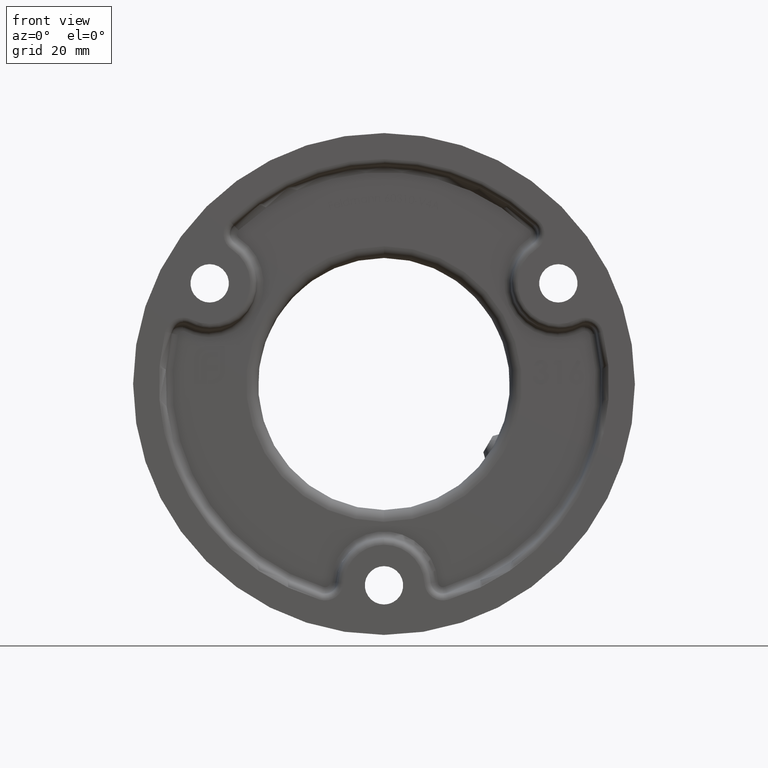
[diagram: clean part render]
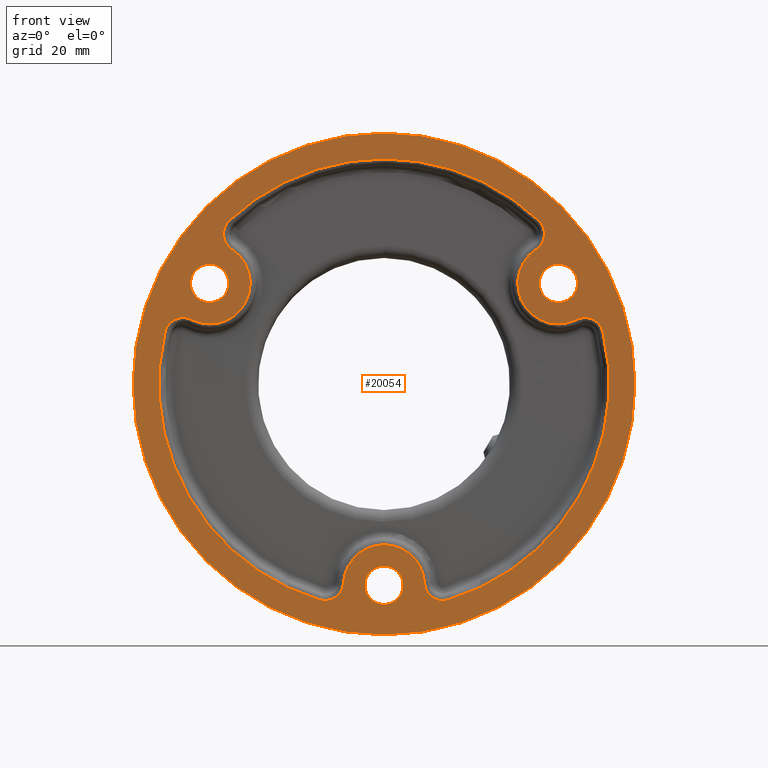
[diagram: same view with one face highlighted and labeled with its STEP entity id]
A machine part, front view. The second image highlights one B-rep face of the part: STEP entity #20054.
In plain terms, the highlighted planar face has unit normal (0, 1, 0).
Its self-contained STEP definition (entity closure, byte-faithful):
#117 = FACE_BOUND ( 'NONE', #10709, .T. ) ;
#248 = CARTESIAN_POINT ( 'NONE',  ( 29.53146626904951333, 0.000000000000000000, 20.29999999999972715 ) ) ;
#334 = DIRECTION ( 'NONE',  ( 0.000000000000000000, 1.000000000000000000, 0.000000000000000000 ) ) ;
#360 = AXIS2_PLACEMENT_3D ( 'NONE', #3693, #6862, #8098 ) ;
#655 = AXIS2_PLACEMENT_3D ( 'NONE', #3336, #4813, #4946 ) ;
#786 = VERTEX_POINT ( 'NONE', #13235 ) ;
#790 = CIRCLE ( 'NONE', #15092, 3.125000000000000888 ) ;
#1036 = EDGE_CURVE ( 'NONE', #5621, #17752, #7336, .T. ) ;
#1049 = AXIS2_PLACEMENT_3D ( 'NONE', #16757, #5937, #19932 ) ;
#1328 = EDGE_CURVE ( 'NONE', #7589, #5621, #790, .T. ) ;
#1543 = AXIS2_PLACEMENT_3D ( 'NONE', #19428, #13123, #9647 ) ;
#1730 = EDGE_CURVE ( 'NONE', #786, #16157, #17221, .T. ) ;
#1852 = EDGE_CURVE ( 'NONE', #16157, #2573, #15255, .T. ) ;
#1880 = ORIENTED_EDGE ( 'NONE', *, *, #13698, .T. ) ;
#1892 = DIRECTION ( 'NONE',  ( 0.000000000000000000, 0.000000000000000000, 1.000000000000000000 ) ) ;
#1913 = CIRCLE ( 'NONE', #10814, 3.125000000000000888 ) ;
#1940 = DIRECTION ( 'NONE',  ( 0.000000000000000000, 1.000000000000000000, 0.000000000000000000 ) ) ;
#1995 = DIRECTION ( 'NONE',  ( 0.000000000000000000, 0.000000000000000000, 1.000000000000000000 ) ) ;
#2003 = DIRECTION ( 'NONE',  ( 0.000000000000000000, 0.000000000000000000, 1.000000000000000000 ) ) ;
#2027 = ORIENTED_EDGE ( 'NONE', *, *, #5619, .T. ) ;
#2063 = EDGE_CURVE ( 'NONE', #9075, #11012, #18709, .T. ) ;
#2226 = AXIS2_PLACEMENT_3D ( 'NONE', #16606, #19847, #15190 ) ;
#2434 = CARTESIAN_POINT ( 'NONE',  ( 0.000000000000000000, 0.000000000000000000, 38.12500000000002132 ) ) ;
#2450 = ORIENTED_EDGE ( 'NONE', *, *, #3965, .T. ) ;
#2479 = EDGE_CURVE ( 'NONE', #9700, #18978, #2859, .T. ) ;
#2543 = CARTESIAN_POINT ( 'NONE',  ( 0.000000000000000000, 0.000000000000000000, 0.000000000000000000 ) ) ;
#2573 = VERTEX_POINT ( 'NONE', #9458 ) ;
#2595 = DIRECTION ( 'NONE',  ( -0.000000000000000000, -1.000000000000000000, -0.000000000000000000 ) ) ;
#2673 = VERTEX_POINT ( 'NONE', #248 ) ;
#2674 = DIRECTION ( 'NONE',  ( 0.000000000000000000, 1.000000000000000000, 0.000000000000000000 ) ) ;
#2859 = CIRCLE ( 'NONE', #1049, 3.125000000000000888 ) ;
#2888 = ORIENTED_EDGE ( 'NONE', *, *, #9302, .F. ) ;
#3005 = ORIENTED_EDGE ( 'NONE', *, *, #5315, .T. ) ;
#3033 = FACE_OUTER_BOUND ( 'NONE', #15891, .T. ) ;
#3204 = CARTESIAN_POINT ( 'NONE',  ( 32.63359460269541756, 0.000000000000000000, 10.91465772742916940 ) ) ;
#3313 = AXIS2_PLACEMENT_3D ( 'NONE', #8584, #7164, #13364 ) ;
#3336 = CARTESIAN_POINT ( 'NONE',  ( -29.53146626904928240, 0.000000000000000000, 17.05000000000013927 ) ) ;
#3564 = CARTESIAN_POINT ( 'NONE',  ( -24.05903266594282996, 0.000000000000000000, 25.41973538766871599 ) ) ;
#3573 = CARTESIAN_POINT ( 'NONE',  ( -32.63359460269526835, 0.000000000000000000, 10.91465772742960816 ) ) ;
#3590 = DIRECTION ( 'NONE',  ( 0.000000000000000000, 1.000000000000000000, 0.000000000000000000 ) ) ;
#3693 = CARTESIAN_POINT ( 'NONE',  ( 24.05903266594319589, 0.000000000000000000, 25.41973538766836782 ) ) ;
#3720 = ORIENTED_EDGE ( 'NONE', *, *, #13725, .T. ) ;
#3953 = CARTESIAN_POINT ( 'NONE',  ( 0.000000000000000000, 0.000000000000000000, -27.22500000000000497 ) ) ;
#3965 = EDGE_CURVE ( 'NONE', #9172, #9700, #5722, .T. ) ;
#4068 = AXIS2_PLACEMENT_3D ( 'NONE', #13545, #4181, #7423 ) ;
#4181 = DIRECTION ( 'NONE',  ( -0.000000000000000000, -1.000000000000000000, -0.000000000000000000 ) ) ;
#4224 = VERTEX_POINT ( 'NONE', #2434 ) ;
#4259 = CARTESIAN_POINT ( 'NONE',  ( 0.000000000000000000, 0.000000000000000000, 0.000000000000000000 ) ) ;
#4550 = VERTEX_POINT ( 'NONE', #12806 ) ;
#4592 = EDGE_CURVE ( 'NONE', #12783, #9172, #15479, .T. ) ;
#4612 = ORIENTED_EDGE ( 'NONE', *, *, #16927, .T. ) ;
#4765 = CARTESIAN_POINT ( 'NONE',  ( 10.87610422292669554, 0.000000000000000000, -36.54074413489738760 ) ) ;
#4813 = DIRECTION ( 'NONE',  ( 0.000000000000000000, 1.000000000000000000, 0.000000000000000000 ) ) ;
#4829 = EDGE_LOOP ( 'NONE', ( #16647, #6370, #4612, #4871, #7392, #15725, #12269, #11859, #6500, #9500, #3005, #9377, #17477, #13491, #2450, #12698 ) ) ;
#4871 = ORIENTED_EDGE ( 'NONE', *, *, #18168, .T. ) ;
#4926 = CARTESIAN_POINT ( 'NONE',  ( 0.000000000000000000, 0.000000000000000000, -34.10000000000000142 ) ) ;
#4946 = DIRECTION ( 'NONE',  ( 0.000000000000000000, 0.000000000000000000, 1.000000000000000000 ) ) ;
#5156 = ORIENTED_EDGE ( 'NONE', *, *, #19455, .T. ) ;
#5315 = EDGE_CURVE ( 'NONE', #9318, #4224, #19884, .T. ) ;
#5374 = CARTESIAN_POINT ( 'NONE',  ( -9.984620270227788197, 0.000000000000000000, -33.54560117302055033 ) ) ;
#5455 = AXIS2_PLACEMENT_3D ( 'NONE', #7079, #19785, #7145 ) ;
#5551 = CARTESIAN_POINT ( 'NONE',  ( 26.20716058254527070, 0.000000000000000000, 27.68935461871018688 ) ) ;
#5571 = CARTESIAN_POINT ( 'NONE',  ( 0.000000000000000000, 0.000000000000000000, -34.10000000000000142 ) ) ;
#5619 = EDGE_CURVE ( 'NONE', #9909, #4550, #16162, .T. ) ;
#5621 = VERTEX_POINT ( 'NONE', #3573 ) ;
#5716 = CARTESIAN_POINT ( 'NONE',  ( 9.984620270227788197, 0.000000000000000000, -33.54560117302055033 ) ) ;
#5722 = CIRCLE ( 'NONE', #14454, 3.125000000000000888 ) ;
#5750 = EDGE_CURVE ( 'NONE', #5894, #10043, #10325, .T. ) ;
#5809 = DIRECTION ( 'NONE',  ( 0.000000000000000000, 0.000000000000000000, 1.000000000000000000 ) ) ;
#5850 = DIRECTION ( 'NONE',  ( 0.000000000000000000, 0.000000000000000000, 1.000000000000000000 ) ) ;
#5894 = VERTEX_POINT ( 'NONE', #4765 ) ;
#5937 = DIRECTION ( 'NONE',  ( 0.000000000000000000, 1.000000000000000000, 0.000000000000000000 ) ) ;
#6164 = FACE_BOUND ( 'NONE', #4829, .T. ) ;
#6232 = CARTESIAN_POINT ( 'NONE',  ( -29.53146626904928240, 0.000000000000000000, 13.80000000000013571 ) ) ;
#6256 = CIRCLE ( 'NONE', #18391, 3.250000000000002665 ) ;
#6339 = DIRECTION ( 'NONE',  ( 0.000000000000000000, 0.000000000000000000, 1.000000000000000000 ) ) ;
#6370 = ORIENTED_EDGE ( 'NONE', *, *, #5750, .T. ) ;
#6467 = DIRECTION ( 'NONE',  ( 0.000000000000000000, 1.000000000000000000, 0.000000000000000000 ) ) ;
#6500 = ORIENTED_EDGE ( 'NONE', *, *, #1036, .T. ) ;
#6693 = DIRECTION ( 'NONE',  ( 0.000000000000000000, 0.000000000000000000, 1.000000000000000000 ) ) ;
#6698 = VERTEX_POINT ( 'NONE', #16223 ) ;
#6862 = DIRECTION ( 'NONE',  ( 0.000000000000000000, 1.000000000000000000, 0.000000000000000000 ) ) ;
#6999 = CARTESIAN_POINT ( 'NONE',  ( 6.864426435781600055, 0.000000000000000000, -33.71885080645161992 ) ) ;
#7016 = AXIS2_PLACEMENT_3D ( 'NONE', #12690, #15905, #17480 ) ;
#7046 = CARTESIAN_POINT ( 'NONE',  ( 29.53146626904951333, 0.000000000000000000, 13.79999999999972182 ) ) ;
#7079 = CARTESIAN_POINT ( 'NONE',  ( 29.53146626904951333, 0.000000000000000000, 17.04999999999972360 ) ) ;
#7145 = DIRECTION ( 'NONE',  ( 0.000000000000000000, 0.000000000000000000, 1.000000000000000000 ) ) ;
#7164 = DIRECTION ( 'NONE',  ( 0.000000000000000000, 1.000000000000000000, 0.000000000000000000 ) ) ;
#7336 = CIRCLE ( 'NONE', #10525, 6.875000000000013323 ) ;
#7392 = ORIENTED_EDGE ( 'NONE', *, *, #1730, .T. ) ;
#7423 = DIRECTION ( 'NONE',  ( 0.000000000000000000, 0.000000000000000000, 1.000000000000000000 ) ) ;
#7589 = VERTEX_POINT ( 'NONE', #14686 ) ;
#7672 = CARTESIAN_POINT ( 'NONE',  ( -29.53146626904928240, 0.000000000000000000, 20.30000000000013927 ) ) ;
#8098 = DIRECTION ( 'NONE',  ( 0.000000000000000000, 0.000000000000000000, 1.000000000000000000 ) ) ;
#8112 = VERTEX_POINT ( 'NONE', #5551 ) ;
#8182 = CARTESIAN_POINT ( 'NONE',  ( 29.53146626904951333, 0.000000000000000000, 17.04999999999972360 ) ) ;
#8282 = DIRECTION ( 'NONE',  ( 0.000000000000000000, 1.000000000000000000, 0.000000000000000000 ) ) ;
#8578 = CIRCLE ( 'NONE', #12389, 3.250000000000002665 ) ;
#8584 = CARTESIAN_POINT ( 'NONE',  ( 0.000000000000000000, 0.000000000000000000, 0.000000000000000000 ) ) ;
#8712 = AXIS2_PLACEMENT_3D ( 'NONE', #5716, #2674, #9022 ) ;
#8874 = EDGE_CURVE ( 'NONE', #17752, #9318, #9520, .T. ) ;
#9022 = DIRECTION ( 'NONE',  ( 0.000000000000000000, 0.000000000000000000, 1.000000000000000000 ) ) ;
#9075 = VERTEX_POINT ( 'NONE', #7672 ) ;
#9172 = VERTEX_POINT ( 'NONE', #3204 ) ;
#9223 = AXIS2_PLACEMENT_3D ( 'NONE', #2543, #10478, #5850 ) ;
#9302 = EDGE_CURVE ( 'NONE', #6698, #11698, #14393, .T. ) ;
#9318 = VERTEX_POINT ( 'NONE', #10162 ) ;
#9377 = ORIENTED_EDGE ( 'NONE', *, *, #13993, .T. ) ;
#9420 = CIRCLE ( 'NONE', #9223, 42.50000000000000711 ) ;
#9458 = CARTESIAN_POINT ( 'NONE',  ( -37.08326480547167137, 0.000000000000000000, 8.851389516187126105 ) ) ;
#9500 = ORIENTED_EDGE ( 'NONE', *, *, #8874, .T. ) ;
#9520 = CIRCLE ( 'NONE', #13157, 3.125000000000002665 ) ;
#9547 = CARTESIAN_POINT ( 'NONE',  ( 29.53146626904951333, 0.000000000000000000, 17.04999999999972360 ) ) ;
#9647 = DIRECTION ( 'NONE',  ( 0.000000000000000000, 0.000000000000000000, 1.000000000000000000 ) ) ;
#9700 = VERTEX_POINT ( 'NONE', #17326 ) ;
#9909 = VERTEX_POINT ( 'NONE', #14174 ) ;
#9923 = DIRECTION ( 'NONE',  ( 0.000000000000000000, 1.000000000000000000, 0.000000000000000000 ) ) ;
#9964 = CARTESIAN_POINT ( 'NONE',  ( 25.76916816691392143, 0.000000000000000000, 22.80419307902191406 ) ) ;
#10043 = VERTEX_POINT ( 'NONE', #6999 ) ;
#10162 = CARTESIAN_POINT ( 'NONE',  ( -26.20716058254486924, 0.000000000000000000, 27.68935461871055992 ) ) ;
#10311 = DIRECTION ( 'NONE',  ( 0.000000000000000000, 1.000000000000000000, 0.000000000000000000 ) ) ;
#10325 = CIRCLE ( 'NONE', #8712, 3.125000000000002665 ) ;
#10478 = DIRECTION ( 'NONE',  ( 0.000000000000000000, 1.000000000000000000, 0.000000000000000000 ) ) ;
#10525 = AXIS2_PLACEMENT_3D ( 'NONE', #12807, #10971, #12740 ) ;
#10709 = EDGE_LOOP ( 'NONE', ( #14770, #15817 ) ) ;
#10814 = AXIS2_PLACEMENT_3D ( 'NONE', #11154, #9923, #6339 ) ;
#10971 = DIRECTION ( 'NONE',  ( -0.000000000000000000, -1.000000000000000000, -0.000000000000000000 ) ) ;
#11012 = VERTEX_POINT ( 'NONE', #6232 ) ;
#11118 = AXIS2_PLACEMENT_3D ( 'NONE', #19403, #10311, #16434 ) ;
#11154 = CARTESIAN_POINT ( 'NONE',  ( -34.04365293617071586, 0.000000000000000000, 8.125865785352100801 ) ) ;
#11310 = CARTESIAN_POINT ( 'NONE',  ( 37.08326480547179926, 0.000000000000000000, 8.851389516186612738 ) ) ;
#11317 = EDGE_LOOP ( 'NONE', ( #1880, #3720 ) ) ;
#11360 = CARTESIAN_POINT ( 'NONE',  ( 0.000000000000000000, 0.000000000000000000, -34.10000000000000142 ) ) ;
#11575 = EDGE_CURVE ( 'NONE', #8112, #12783, #12862, .T. ) ;
#11672 = PLANE ( 'NONE',  #11118 ) ;
#11698 = VERTEX_POINT ( 'NONE', #11898 ) ;
#11703 = AXIS2_PLACEMENT_3D ( 'NONE', #13457, #15103, #19759 ) ;
#11707 = AXIS2_PLACEMENT_3D ( 'NONE', #8182, #334, #1892 ) ;
#11832 = DIRECTION ( 'NONE',  ( 0.000000000000000000, 0.000000000000000000, 1.000000000000000000 ) ) ;
#11853 = CIRCLE ( 'NONE', #11707, 3.250000000000002665 ) ;
#11859 = ORIENTED_EDGE ( 'NONE', *, *, #1328, .T. ) ;
#11860 = AXIS2_PLACEMENT_3D ( 'NONE', #11360, #14494, #2003 ) ;
#11898 = CARTESIAN_POINT ( 'NONE',  ( 5.204748896376252474E-15, 0.000000000000000000, 42.50000000000000711 ) ) ;
#12269 = ORIENTED_EDGE ( 'NONE', *, *, #14954, .T. ) ;
#12389 = AXIS2_PLACEMENT_3D ( 'NONE', #4926, #1940, #19232 ) ;
#12690 = CARTESIAN_POINT ( 'NONE',  ( 0.000000000000000000, 0.000000000000000000, 0.000000000000000000 ) ) ;
#12698 = ORIENTED_EDGE ( 'NONE', *, *, #2479, .T. ) ;
#12740 = DIRECTION ( 'NONE',  ( 0.000000000000000000, 0.000000000000000000, 1.000000000000000000 ) ) ;
#12783 = VERTEX_POINT ( 'NONE', #9964 ) ;
#12787 = AXIS2_PLACEMENT_3D ( 'NONE', #5571, #2595, #13453 ) ;
#12806 = CARTESIAN_POINT ( 'NONE',  ( 0.000000000000000000, 0.000000000000000000, -30.84999999999999432 ) ) ;
#12807 = CARTESIAN_POINT ( 'NONE',  ( -29.53146626904928240, 0.000000000000000000, 17.05000000000013927 ) ) ;
#12862 = CIRCLE ( 'NONE', #360, 3.124999999999999112 ) ;
#13059 = EDGE_CURVE ( 'NONE', #11698, #6698, #9420, .T. ) ;
#13123 = DIRECTION ( 'NONE',  ( 0.000000000000000000, 1.000000000000000000, 0.000000000000000000 ) ) ;
#13153 = EDGE_LOOP ( 'NONE', ( #5156, #2027 ) ) ;
#13157 = AXIS2_PLACEMENT_3D ( 'NONE', #3564, #8282, #1995 ) ;
#13235 = CARTESIAN_POINT ( 'NONE',  ( -6.864426435781600055, 0.000000000000000000, -33.71885080645161992 ) ) ;
#13364 = DIRECTION ( 'NONE',  ( 0.000000000000000000, 0.000000000000000000, 1.000000000000000000 ) ) ;
#13396 = CARTESIAN_POINT ( 'NONE',  ( -34.04365293617071586, 0.000000000000000000, 8.125865785352100801 ) ) ;
#13453 = DIRECTION ( 'NONE',  ( 0.000000000000000000, 0.000000000000000000, 1.000000000000000000 ) ) ;
#13457 = CARTESIAN_POINT ( 'NONE',  ( 0.000000000000000000, 0.000000000000000000, 0.000000000000000000 ) ) ;
#13465 = DIRECTION ( 'NONE',  ( 0.000000000000000000, 1.000000000000000000, 0.000000000000000000 ) ) ;
#13491 = ORIENTED_EDGE ( 'NONE', *, *, #4592, .T. ) ;
#13519 = CIRCLE ( 'NONE', #12787, 6.874999999999988454 ) ;
#13545 = CARTESIAN_POINT ( 'NONE',  ( 0.000000000000000000, 0.000000000000000000, -34.10000000000000142 ) ) ;
#13560 = CIRCLE ( 'NONE', #2226, 3.250000000000002665 ) ;
#13698 = EDGE_CURVE ( 'NONE', #2673, #18537, #11853, .T. ) ;
#13707 = FACE_BOUND ( 'NONE', #13153, .T. ) ;
#13725 = EDGE_CURVE ( 'NONE', #18537, #2673, #6256, .T. ) ;
#13764 = CIRCLE ( 'NONE', #4068, 6.874999999999988454 ) ;
#13800 = CIRCLE ( 'NONE', #7016, 38.12500000000002132 ) ;
#13993 = EDGE_CURVE ( 'NONE', #4224, #8112, #15756, .T. ) ;
#14174 = CARTESIAN_POINT ( 'NONE',  ( 3.980102097228903655E-16, 0.000000000000000000, -37.35000000000000142 ) ) ;
#14188 = FACE_BOUND ( 'NONE', #11317, .T. ) ;
#14268 = ORIENTED_EDGE ( 'NONE', *, *, #13059, .F. ) ;
#14333 = VERTEX_POINT ( 'NONE', #3953 ) ;
#14393 = CIRCLE ( 'NONE', #3313, 42.50000000000000711 ) ;
#14454 = AXIS2_PLACEMENT_3D ( 'NONE', #17304, #6467, #17377 ) ;
#14494 = DIRECTION ( 'NONE',  ( 0.000000000000000000, 1.000000000000000000, 0.000000000000000000 ) ) ;
#14686 = CARTESIAN_POINT ( 'NONE',  ( -34.04365293617071586, 0.000000000000000000, 11.25086578535210080 ) ) ;
#14770 = ORIENTED_EDGE ( 'NONE', *, *, #2063, .T. ) ;
#14954 = EDGE_CURVE ( 'NONE', #2573, #7589, #1913, .T. ) ;
#15092 = AXIS2_PLACEMENT_3D ( 'NONE', #13396, #13465, #11832 ) ;
#15103 = DIRECTION ( 'NONE',  ( 0.000000000000000000, 1.000000000000000000, 0.000000000000000000 ) ) ;
#15131 = DIRECTION ( 'NONE',  ( 0.000000000000000000, 1.000000000000000000, 0.000000000000000000 ) ) ;
#15155 = CARTESIAN_POINT ( 'NONE',  ( -25.76916816691359102, 0.000000000000000000, 22.80419307902229065 ) ) ;
#15165 = EDGE_CURVE ( 'NONE', #11012, #9075, #13560, .T. ) ;
#15190 = DIRECTION ( 'NONE',  ( 0.000000000000000000, 0.000000000000000000, 1.000000000000000000 ) ) ;
#15255 = CIRCLE ( 'NONE', #1543, 38.12500000000002132 ) ;
#15479 = CIRCLE ( 'NONE', #5455, 6.874999999999995559 ) ;
#15725 = ORIENTED_EDGE ( 'NONE', *, *, #1852, .T. ) ;
#15756 = CIRCLE ( 'NONE', #17994, 38.12500000000002132 ) ;
#15817 = ORIENTED_EDGE ( 'NONE', *, *, #15165, .T. ) ;
#15860 = DIRECTION ( 'NONE',  ( 0.000000000000000000, 0.000000000000000000, 1.000000000000000000 ) ) ;
#15871 = EDGE_CURVE ( 'NONE', #18978, #5894, #13800, .T. ) ;
#15891 = EDGE_LOOP ( 'NONE', ( #2888, #14268 ) ) ;
#15905 = DIRECTION ( 'NONE',  ( 0.000000000000000000, 1.000000000000000000, 0.000000000000000000 ) ) ;
#16157 = VERTEX_POINT ( 'NONE', #18430 ) ;
#16162 = CIRCLE ( 'NONE', #11860, 3.250000000000002665 ) ;
#16223 = CARTESIAN_POINT ( 'NONE',  ( 0.000000000000000000, 0.000000000000000000, -42.50000000000000711 ) ) ;
#16434 = DIRECTION ( 'NONE',  ( 0.000000000000000000, -0.000000000000000000, 1.000000000000000000 ) ) ;
#16606 = CARTESIAN_POINT ( 'NONE',  ( -29.53146626904928240, 0.000000000000000000, 17.05000000000013927 ) ) ;
#16647 = ORIENTED_EDGE ( 'NONE', *, *, #15871, .T. ) ;
#16757 = CARTESIAN_POINT ( 'NONE',  ( 34.04365293617082955, 0.000000000000000000, 8.125865785351642501 ) ) ;
#16927 = EDGE_CURVE ( 'NONE', #10043, #14333, #13519, .T. ) ;
#17221 = CIRCLE ( 'NONE', #18640, 3.125000000000002665 ) ;
#17304 = CARTESIAN_POINT ( 'NONE',  ( 34.04365293617082955, 0.000000000000000000, 8.125865785351642501 ) ) ;
#17326 = CARTESIAN_POINT ( 'NONE',  ( 34.04365293617082955, 0.000000000000000000, 11.25086578535164428 ) ) ;
#17377 = DIRECTION ( 'NONE',  ( 0.000000000000000000, 0.000000000000000000, 1.000000000000000000 ) ) ;
#17477 = ORIENTED_EDGE ( 'NONE', *, *, #11575, .T. ) ;
#17480 = DIRECTION ( 'NONE',  ( 0.000000000000000000, 0.000000000000000000, 1.000000000000000000 ) ) ;
#17752 = VERTEX_POINT ( 'NONE', #15155 ) ;
#17994 = AXIS2_PLACEMENT_3D ( 'NONE', #4259, #15131, #5809 ) ;
#18168 = EDGE_CURVE ( 'NONE', #14333, #786, #13764, .T. ) ;
#18391 = AXIS2_PLACEMENT_3D ( 'NONE', #9547, #3590, #6693 ) ;
#18430 = CARTESIAN_POINT ( 'NONE',  ( -10.87610422292669554, 0.000000000000000000, -36.54074413489738760 ) ) ;
#18537 = VERTEX_POINT ( 'NONE', #7046 ) ;
#18640 = AXIS2_PLACEMENT_3D ( 'NONE', #5374, #19091, #15860 ) ;
#18709 = CIRCLE ( 'NONE', #655, 3.250000000000002665 ) ;
#18978 = VERTEX_POINT ( 'NONE', #11310 ) ;
#19091 = DIRECTION ( 'NONE',  ( 0.000000000000000000, 1.000000000000000000, 0.000000000000000000 ) ) ;
#19232 = DIRECTION ( 'NONE',  ( 0.000000000000000000, 0.000000000000000000, 1.000000000000000000 ) ) ;
#19403 = CARTESIAN_POINT ( 'NONE',  ( 0.000000000000000000, 0.000000000000000000, 0.000000000000000000 ) ) ;
#19428 = CARTESIAN_POINT ( 'NONE',  ( 0.000000000000000000, 0.000000000000000000, 0.000000000000000000 ) ) ;
#19455 = EDGE_CURVE ( 'NONE', #4550, #9909, #8578, .T. ) ;
#19759 = DIRECTION ( 'NONE',  ( 0.000000000000000000, 0.000000000000000000, 1.000000000000000000 ) ) ;
#19785 = DIRECTION ( 'NONE',  ( -0.000000000000000000, -1.000000000000000000, -0.000000000000000000 ) ) ;
#19847 = DIRECTION ( 'NONE',  ( 0.000000000000000000, 1.000000000000000000, 0.000000000000000000 ) ) ;
#19884 = CIRCLE ( 'NONE', #11703, 38.12500000000002132 ) ;
#19932 = DIRECTION ( 'NONE',  ( 0.000000000000000000, 0.000000000000000000, 1.000000000000000000 ) ) ;
#20054 = ADVANCED_FACE ( 'NONE', ( #6164, #14188, #117, #13707, #3033 ), #11672, .F. ) ;